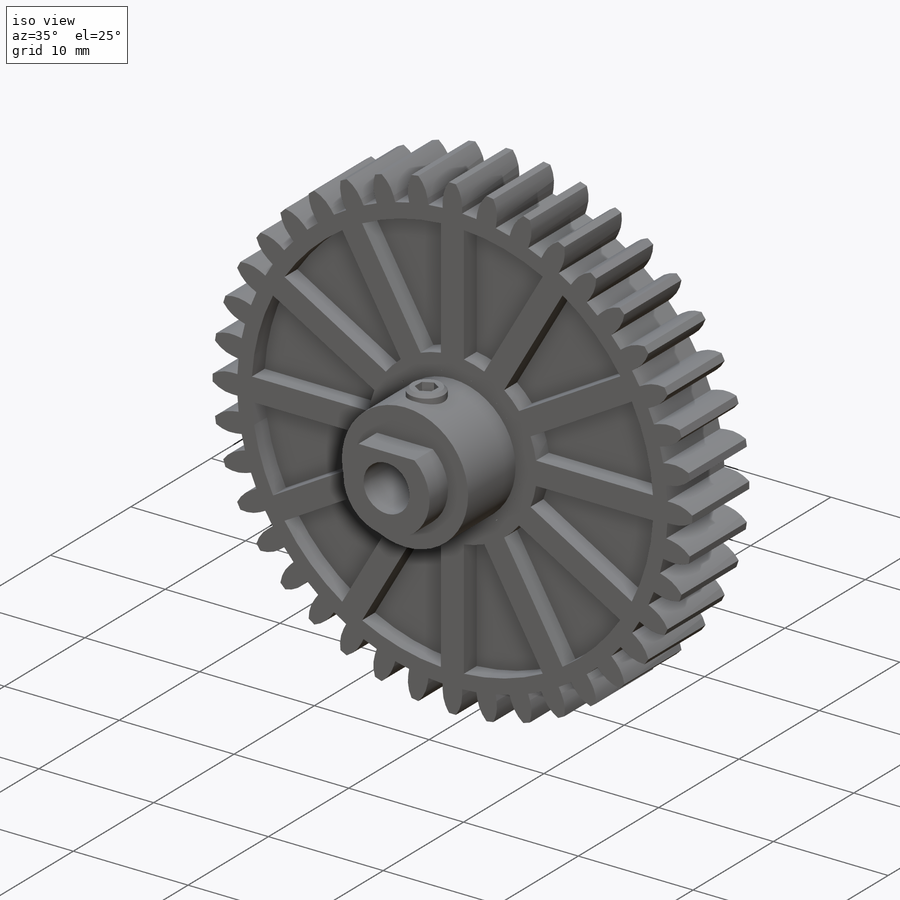
[diagram: iso view]
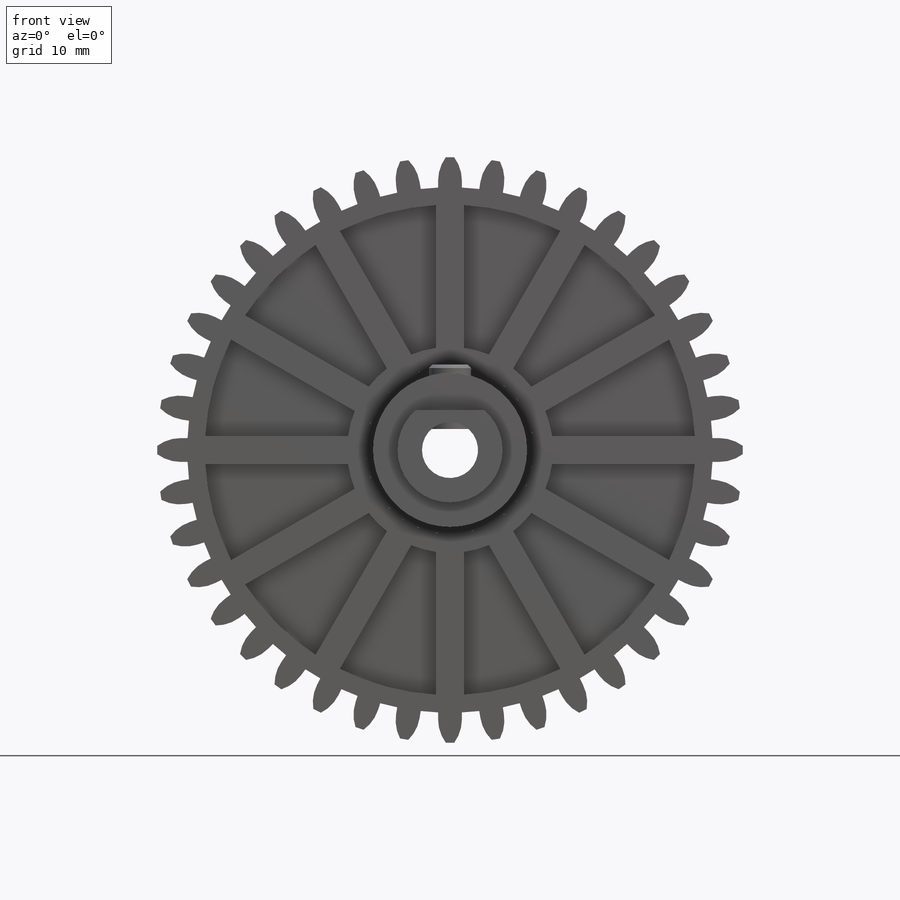
[diagram: front view]
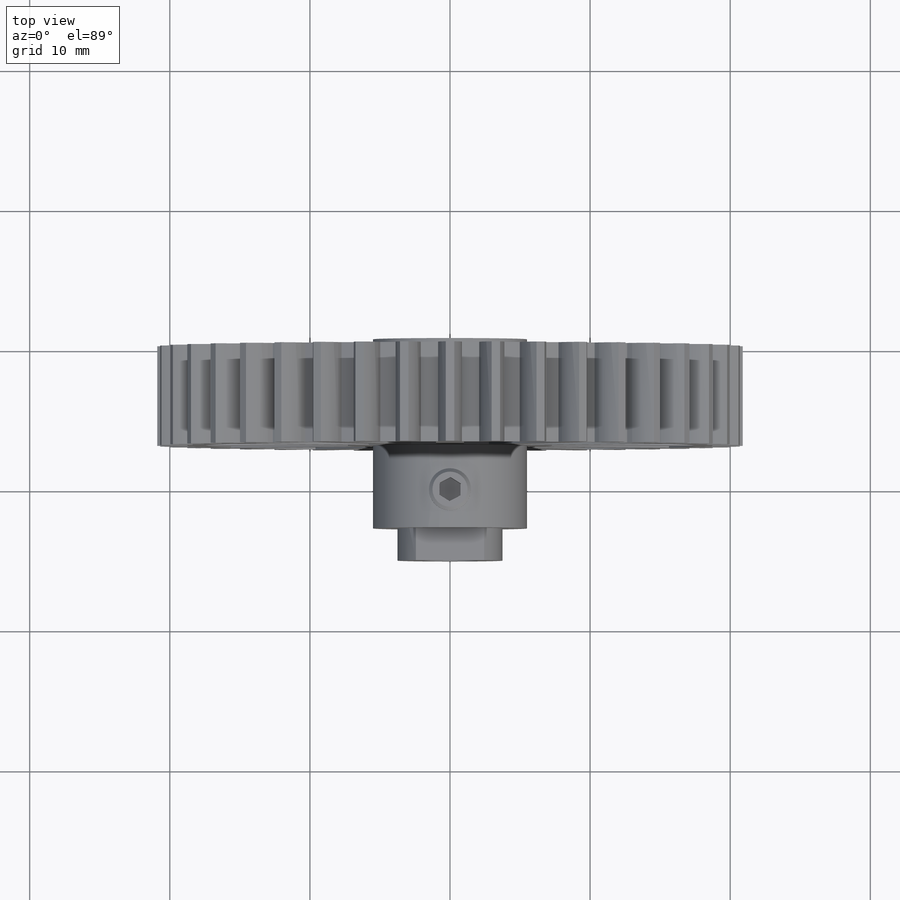
[diagram: top view]
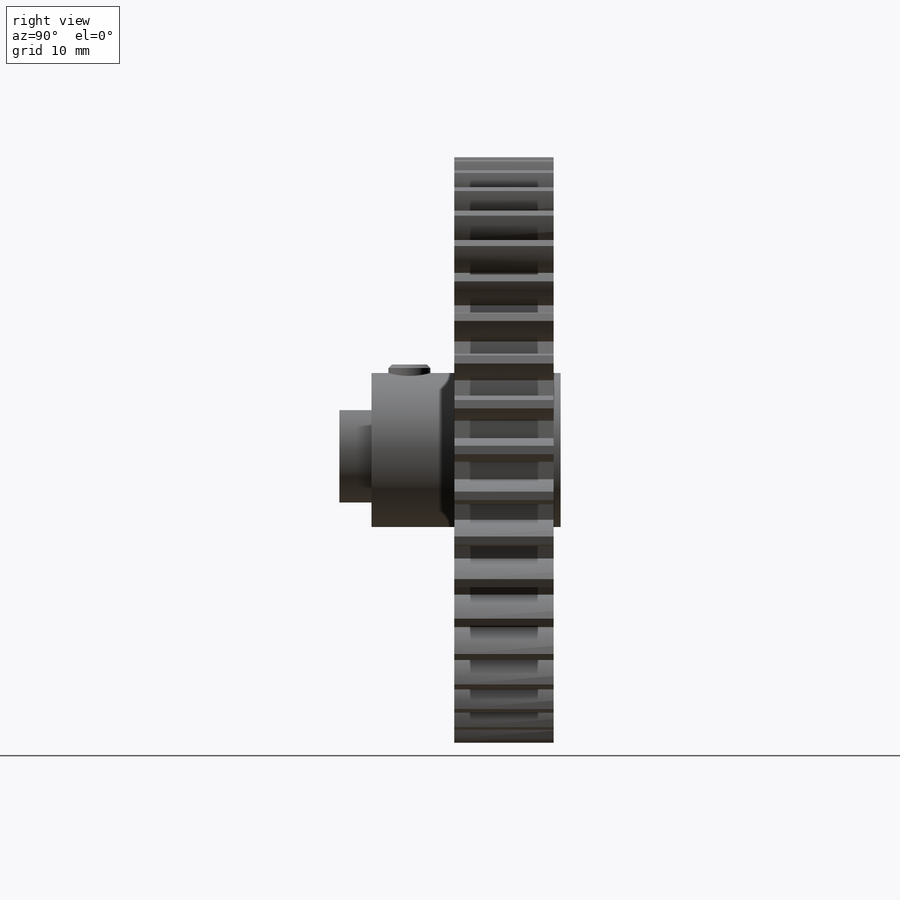
[diagram: right view]
SOLIDWORKS PART (.sldprt)
format: sldprt  version: not decoded by parser v0  size: 715,776 bytes
history: native  units: mm
features: sketch x9, cut_extrude x5, material x4, extrude x3, pattern_circular x2, revolve x1, plane x1, chamfer x1 + 2 further entries (+12 scaffold rows collapsed)
feature tree (40):
  scaffold x12  (default folders/planes/origin — collapsed)
  material  "PA Type 6"
  material  "1060 Alloy"
  material  "Plain Carbon Steel"
  material  "PA Type 6"
  "Cut-List-Item2"
  "Cut-List-Item3"
  sketch  "Sketch4"  dims[D1=4.0mm D2=11.0mm D3=12.0mm D4=7.5mm D5=0.5mm D6=7.1mm D7=15.8mm D8=13.5mm]
  revolve  "Revolve1"  Angle=360deg
  sketch  "Sketch5"  dims[D2=2.5mm D1=5.0mm]
  cut_extrude  "Cut-Extrude1"  [1 undecoded]
  sketch  "Sketch6"  dims[c1.D1=~2.618113mm c1.D2=3.75mm c1.D3=~4.618113mm c1.D4=~6.368113mm c2.D3=~2.618113mm c2.D1=6.6mm]
  cut_extrude  "Cut-Extrude2"  [1 undecoded]
  sketch  "Sketch1"  dims[D1=37.5mm D2=12.0mm]
  extrude  "Boss-Extrude1"  Depth=7.1mm
  sketch  "Sketch2"  dims[D1=41.8mm D2=0.6mm D3=1.7mm D4=0.5mm]
  extrude  "Boss-Extrude2"  [1 undecoded]
  pattern_circular  "CirPattern1"  Count=40 Angle=15deg
  sketch  "Sketch7"  dims[c1.D2=14.7mm c1.D3=35.0mm c1.D1=~31.513385mm c2.D1=30.0deg c2.D4=1.0mm]
  cut_extrude  "Cut-Extrude3"  Depth=1.6mm
  sketch  "Sketch8"  dims[D1=0.0mm]
  cut_extrude  "Cut-Extrude4"  Depth=1.6mm
  pattern_circular  "CirPattern2"  Count=12 Angle=360deg
  plane  "Plane1"  Offset=1.5mm
  sketch  "Sketch9"  dims[D1=3.0mm]
  extrude  "Boss-Extrude3"  Depth=4.6mm
  chamfer  "Chamfer1"  Distance=0.25mm Angle=45deg
  sketch  "Sketch10"  dims[D1=1.5mm]
  cut_extrude  "Cut-Extrude5"  Depth=2mm
decode coverage: 18 of 21 modeling features carry decoded parameters; 2 rows unclassified (native names shown)
note: ~ marks probable driven/reference dimensions
note: 3 parameter values undecoded
summary: no parameter record found for 3 features
note: suppression state not decoded; provenance and decode notes live in map.json
